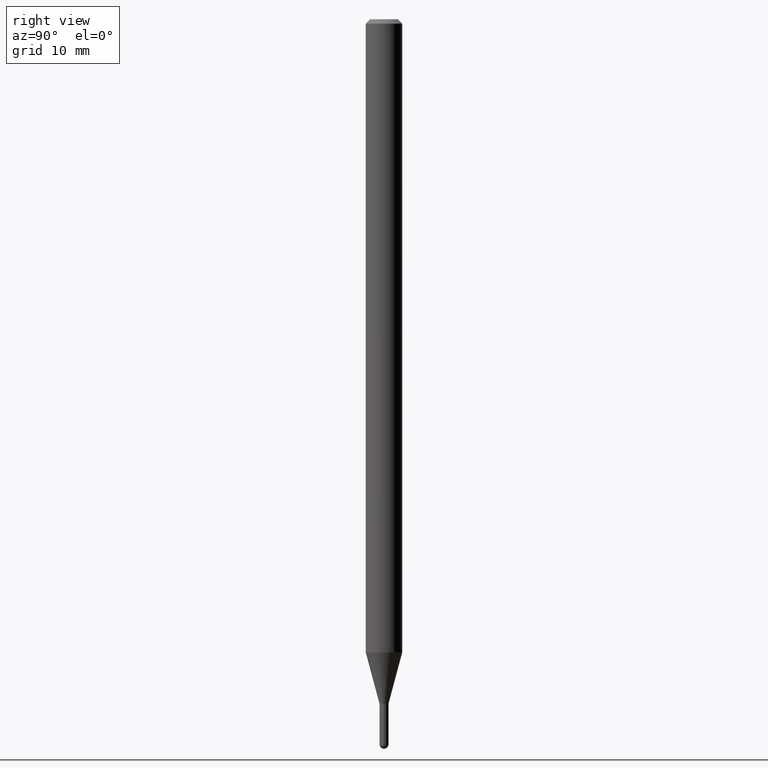
[diagram: clean part render]
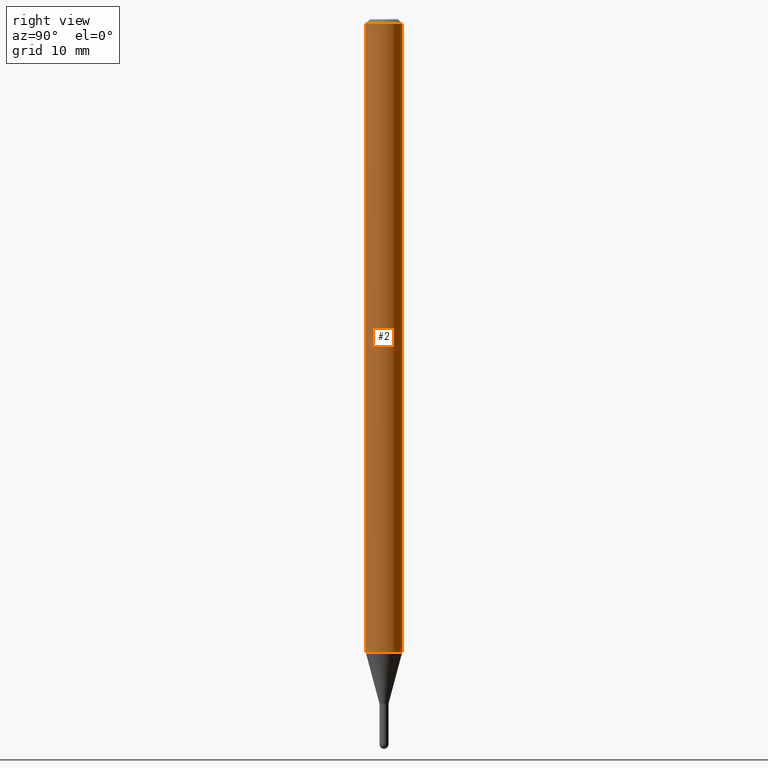
[diagram: same view with one face highlighted and labeled with its STEP entity id]
A machine part, right view. The second image highlights one B-rep face of the part: STEP entity #2.
In plain terms, the highlighted cylindrical surface (edge-blend (fillet) strip) has radius 1.5875 mm, axis along (-0, 0, 1).
Its self-contained STEP definition (entity closure, byte-faithful):
#2 = ADVANCED_FACE ( 'NONE', ( #105 ), #267, .T. ) ;
#8 = ORIENTED_EDGE ( 'NONE', *, *, #496, .T. ) ;
#11 = VERTEX_POINT ( 'NONE', #396 ) ;
#48 = VERTEX_POINT ( 'NONE', #328 ) ;
#60 = CARTESIAN_POINT ( 'NONE',  ( -4.364351673553916201E-16, -0.06250000000000000000, 2.182175128975547640E-16 ) ) ;
#70 = DIRECTION ( 'NONE',  ( -2.445469596993278847E-29, 3.491480206360875830E-15, 1.000000000000000000 ) ) ;
#87 = ORIENTED_EDGE ( 'NONE', *, *, #377, .T. ) ;
#103 = DIRECTION ( 'NONE',  ( -6.982962677686265922E-15, -1.000000000000000000, 3.491480206360876224E-15 ) ) ;
#105 = FACE_OUTER_BOUND ( 'NONE', #418, .T. ) ;
#127 = DIRECTION ( 'NONE',  ( -6.982962677686265922E-15, -1.000000000000000000, 3.483106191921935554E-15 ) ) ;
#135 = CARTESIAN_POINT ( 'NONE',  ( 3.668204395489934070E-31, -5.237220309541337608E-17, -0.01500000000000006710 ) ) ;
#146 = CARTESIAN_POINT ( 'NONE',  ( 4.440892098500625669E-16, 0.06250000000000000000, -2.182175128975547640E-16 ) ) ;
#153 = DIRECTION ( 'NONE',  ( -6.982962677686265922E-15, -1.000000000000000000, 4.370956789862821150E-15 ) ) ;
#155 = EDGE_CURVE ( 'NONE', #11, #48, #222, .T. ) ;
#183 = DIRECTION ( 'NONE',  ( -2.445469596993278847E-29, 3.491480206360875830E-15, 1.000000000000000000 ) ) ;
#188 = ORIENTED_EDGE ( 'NONE', *, *, #155, .F. ) ;
#202 = DIRECTION ( 'NONE',  ( -2.445469596993278567E-29, 3.491480206360876224E-15, 1.000000000000000000 ) ) ;
#209 = DIRECTION ( 'NONE',  ( -2.445469596993278567E-29, 3.491480206360876224E-15, 1.000000000000000000 ) ) ;
#222 = CIRCLE ( 'NONE', #234, 0.06250000000000000000 ) ;
#229 = CARTESIAN_POINT ( 'NONE',  ( 5.305675216085086761E-29, -7.575093152299557168E-15, -2.169593612044267594 ) ) ;
#231 = EDGE_CURVE ( 'NONE', #304, #11, #493, .T. ) ;
#234 = AXIS2_PLACEMENT_3D ( 'NONE', #135, #202, #127 ) ;
#247 = AXIS2_PLACEMENT_3D ( 'NONE', #316, #209, #103 ) ;
#251 = VERTEX_POINT ( 'NONE', #352 ) ;
#265 = VECTOR ( 'NONE', #70, 39.37007874015748143 ) ;
#267 = CYLINDRICAL_SURFACE ( 'NONE', #247, 0.06250000000000000000 ) ;
#291 = CARTESIAN_POINT ( 'NONE',  ( -4.364351673553386678E-16, -0.06250000000000759115, -2.169593612044267150 ) ) ;
#304 = VERTEX_POINT ( 'NONE', #291 ) ;
#316 = CARTESIAN_POINT ( 'NONE',  ( 0.000000000000000000, 0.000000000000000000, 0.000000000000000000 ) ) ;
#320 = CIRCLE ( 'NONE', #404, 0.06250000000000000000 ) ;
#328 = CARTESIAN_POINT ( 'NONE',  ( 4.440892098501160615E-16, 0.06249999999999995837, -0.01500000000000028394 ) ) ;
#352 = CARTESIAN_POINT ( 'NONE',  ( 4.440892098501153712E-16, 0.06249999999999240191, -2.169593612044267594 ) ) ;
#377 = EDGE_CURVE ( 'NONE', #304, #251, #320, .T. ) ;
#385 = VECTOR ( 'NONE', #183, 39.37007874015748143 ) ;
#396 = CARTESIAN_POINT ( 'NONE',  ( -4.364351673553912750E-16, -0.06250000000000005551, -0.01499999999999984852 ) ) ;
#404 = AXIS2_PLACEMENT_3D ( 'NONE', #229, #425, #153 ) ;
#418 = EDGE_LOOP ( 'NONE', ( #87, #8, #188, #476 ) ) ;
#425 = DIRECTION ( 'NONE',  ( -2.445469596993278567E-29, 3.491480206360876224E-15, 1.000000000000000000 ) ) ;
#427 = LINE ( 'NONE', #146, #265 ) ;
#476 = ORIENTED_EDGE ( 'NONE', *, *, #231, .F. ) ;
#493 = LINE ( 'NONE', #60, #385 ) ;
#496 = EDGE_CURVE ( 'NONE', #251, #48, #427, .T. ) ;